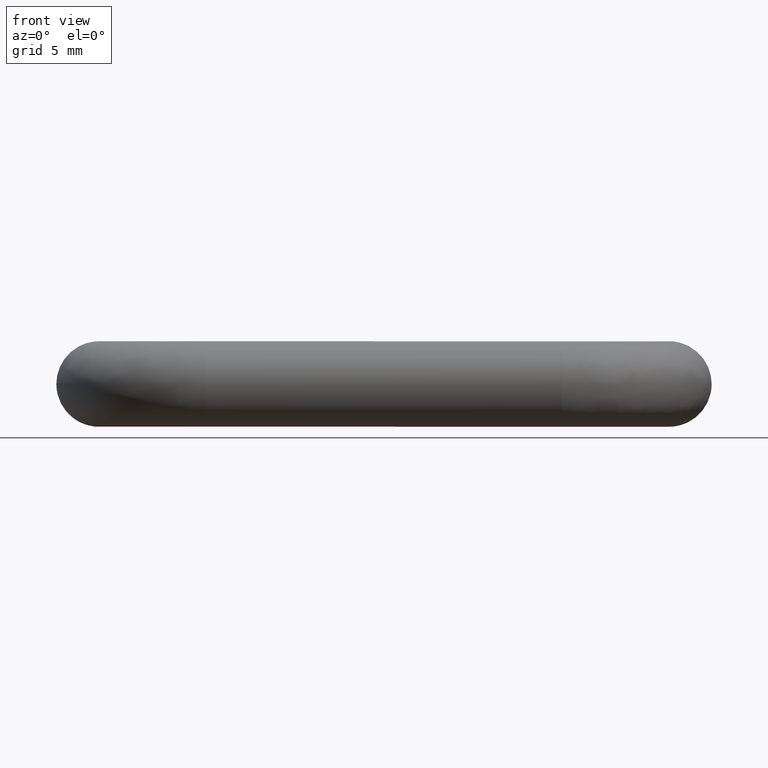
[diagram: clean part render]
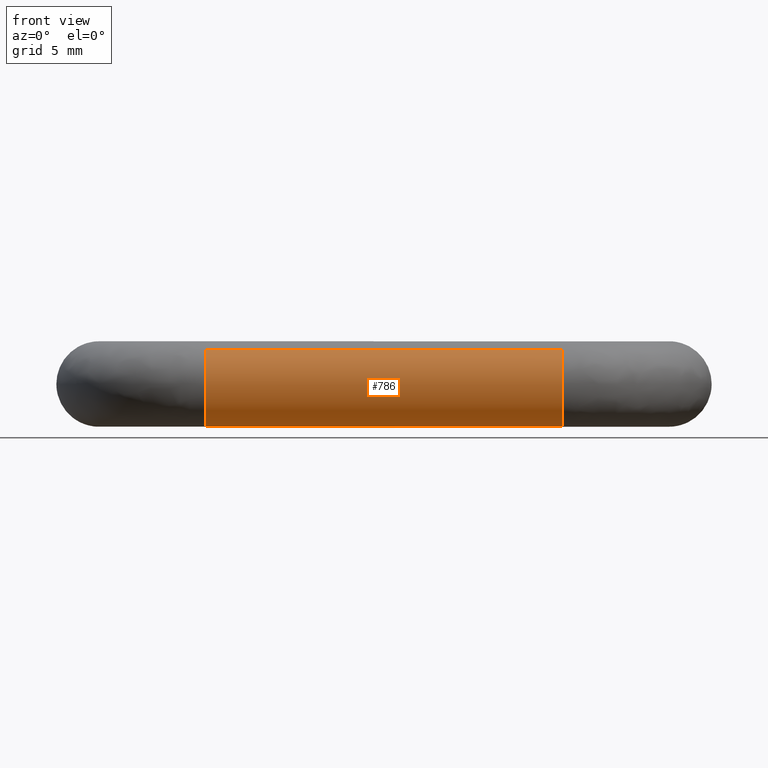
[diagram: same view with one face highlighted and labeled with its STEP entity id]
A machine part, front view. The second image highlights one B-rep face of the part: STEP entity #786.
In plain terms, the highlighted face is a freeform B-spline surface patch.
Its self-contained STEP definition (entity closure, byte-faithful):
#620=CARTESIAN_POINT('',(6.874999999837713,-20.824133624861286,2.381708739256423));
#621=CARTESIAN_POINT('',(6.874999999837713,-21.033590119325840,2.221287513856022));
#622=CARTESIAN_POINT('',(6.874999999837713,-21.211832010430371,2.026770622846980));
#623=CARTESIAN_POINT('',(6.874999999837713,-23.238602633277360,-0.185061387583391));
#624=CARTESIAN_POINT('',(6.874999999837713,-21.026770622846978,-2.211832010430372));
#625=CARTESIAN_POINT('',(6.874999999837713,-18.814938612416615,-4.238602633277352));
#626=CARTESIAN_POINT('',(6.874999999837713,-16.788167989569629,-2.026770622846980));
#627=CARTESIAN_POINT('',(6.874999999837713,-14.761397366722647,0.185061387583391));
#628=CARTESIAN_POINT('',(6.874999999837713,-16.973229377153022,2.211832010430372));
#629=CARTESIAN_POINT('',(33.140625000443897,-20.824133624861286,2.381708739256423));
#630=CARTESIAN_POINT('',(33.140625000443897,-21.033590119325829,2.221287513856022));
#631=CARTESIAN_POINT('',(33.140625000443897,-21.211832010430371,2.026770622846980));
#632=CARTESIAN_POINT('',(33.140625000443897,-23.238602633277342,-0.185061387583391));
#633=CARTESIAN_POINT('',(33.140625000443897,-21.026770622846978,-2.211832010430372));
#634=CARTESIAN_POINT('',(33.140625000443897,-18.814938612416601,-4.238602633277352));
#635=CARTESIAN_POINT('',(33.140625000443897,-16.788167989569629,-2.026770622846980));
#636=CARTESIAN_POINT('',(33.140625000443897,-14.761397366722647,0.185061387583391));
#637=CARTESIAN_POINT('',(33.140625000443897,-16.973229377153022,2.211832010430372));
#645=(BOUNDED_SURFACE()B_SPLINE_SURFACE(2,1,((#620,#629),(#621,#630),(#622,#631),(#623,#632),(#624,#633),(#625,#634),(#626,#635),(#627,#636),(#628,#637)),.UNSPECIFIED.,.F.,.F.,.U.)B_SPLINE_SURFACE_WITH_KNOTS((3,2,2,2,3),(2,2),(0.0,0.596467529817257,5.567030278294396,10.537593026771541,15.508155775248680),(0.0,26.265625000606189),.UNSPECIFIED.)GEOMETRIC_REPRESENTATION_ITEM()RATIONAL_B_SPLINE_SURFACE(((0.938140952186599,0.938140952186599),(0.964852813742386,0.964852813742386),(1.0,1.0),(0.707106781186548,0.707106781186548),(1.0,1.0),(0.707106781186548,0.707106781186548),(1.0,1.0),(0.707106781186548,0.707106781186548),(1.0,1.0)))REPRESENTATION_ITEM('')SURFACE());
#646=CARTESIAN_POINT('',(32.500000000000000,-22.0,0.0));
#647=VERTEX_POINT('',#646);
#648=CARTESIAN_POINT('',(32.500000000180812,-20.824133624744910,2.381708739103320));
#649=VERTEX_POINT('',#648);
#650=CARTESIAN_POINT('',(32.500000000000000,-22.0,0.0));
#651=CARTESIAN_POINT('',(32.499999999999993,-22.000000000000004,1.481121123841983));
#652=CARTESIAN_POINT('',(32.500000000180805,-20.824133624744913,2.381708739103320));
#660=(BOUNDED_CURVE()B_SPLINE_CURVE(2,(#650,#651,#652),.UNSPECIFIED.,.F.,.U.)B_SPLINE_CURVE_WITH_KNOTS((3,3),(0.500000000000000,0.644916377192483),.UNSPECIFIED.)CURVE()GEOMETRIC_REPRESENTATION_ITEM()RATIONAL_B_SPLINE_CURVE((1.0,0.830219903301237,0.857271138866268))REPRESENTATION_ITEM(''));
#661=EDGE_CURVE('',#647,#649,#660,.T.);
#662=ORIENTED_EDGE('',*,*,#661,.T.);
#663=CARTESIAN_POINT('',(7.500000000000000,-20.824133624861819,2.381708739256015));
#664=VERTEX_POINT('',#663);
#665=CARTESIAN_POINT('',(7.500000000000000,-20.824133624861819,2.381708739256015));
#666=CARTESIAN_POINT('',(32.500000000180812,-20.824133624744910,2.381708739103320));
#667=QUASI_UNIFORM_CURVE('',1,(#665,#666),.UNSPECIFIED.,.F.,.U.);
#668=EDGE_CURVE('',#664,#649,#667,.T.);
#669=ORIENTED_EDGE('',*,*,#668,.F.);
#670=CARTESIAN_POINT('',(7.500000000000000,-22.0,0.0));
#671=VERTEX_POINT('',#670);
#672=CARTESIAN_POINT('',(7.500000000000000,-22.0,0.0));
#673=CARTESIAN_POINT('',(7.500000000000000,-22.0,1.481121124204090));
#674=CARTESIAN_POINT('',(7.500000000000001,-20.824133624861819,2.381708739256015));
#682=(BOUNDED_CURVE()B_SPLINE_CURVE(2,(#672,#673,#674),.UNSPECIFIED.,.F.,.U.)B_SPLINE_CURVE_WITH_KNOTS((3,3),(0.500000000000000,0.644916377221898),.UNSPECIFIED.)CURVE()GEOMETRIC_REPRESENTATION_ITEM()RATIONAL_B_SPLINE_CURVE((1.0,0.830219903266776,0.857271138877249))REPRESENTATION_ITEM(''));
#683=EDGE_CURVE('',#671,#664,#682,.T.);
#684=ORIENTED_EDGE('',*,*,#683,.F.);
#685=CARTESIAN_POINT('',(7.499999999852138,-19.209199755468461,-2.992697021469419));
#686=VERTEX_POINT('',#685);
#687=CARTESIAN_POINT('',(7.499999999852138,-19.209199755468461,-2.992697021469419));
#688=CARTESIAN_POINT('',(7.499999999999999,-22.0,-2.797610540408957));
#689=CARTESIAN_POINT('',(7.500000000000000,-22.0,0.0));
#697=(BOUNDED_CURVE()B_SPLINE_CURVE(2,(#687,#688,#689),.UNSPECIFIED.,.F.,.U.)B_SPLINE_CURVE_WITH_KNOTS((3,3),(0.262166313550163,0.500000000000000),.UNSPECIFIED.)CURVE()GEOMETRIC_REPRESENTATION_ITEM()RATIONAL_B_SPLINE_CURVE((0.972879876206656,0.721360504133751,1.0))REPRESENTATION_ITEM(''));
#698=EDGE_CURVE('',#686,#671,#697,.T.);
#699=ORIENTED_EDGE('',*,*,#698,.F.);
#700=CARTESIAN_POINT('',(7.500000000000000,-16.0,0.0));
#701=VERTEX_POINT('',#700);
#702=CARTESIAN_POINT('',(7.500000000000000,-16.0,0.0));
#703=CARTESIAN_POINT('',(7.500000000000000,-15.999999999999998,-3.0));
#704=CARTESIAN_POINT('',(7.500000000000000,-19.0,-3.0));
#705=CARTESIAN_POINT('',(7.499999999999999,-19.104727348368993,-3.000000000000000));
#706=CARTESIAN_POINT('',(7.499999999852138,-19.209199755468454,-2.992697021469420));
#714=(BOUNDED_CURVE()B_SPLINE_CURVE(2,(#702,#703,#704,#705,#706),.UNSPECIFIED.,.F.,.U.)B_SPLINE_CURVE_WITH_KNOTS((3,2,3),(0.0,0.250000000000000,0.262166313550163),.UNSPECIFIED.)CURVE()GEOMETRIC_REPRESENTATION_ITEM()RATIONAL_B_SPLINE_CURVE((1.0,0.707106781186548,1.0,0.985746277052796,0.972879876206656))REPRESENTATION_ITEM(''));
#715=EDGE_CURVE('',#701,#686,#714,.T.);
#716=ORIENTED_EDGE('',*,*,#715,.F.);
#717=CARTESIAN_POINT('',(7.499999999961977,-16.973229603323041,2.211832217647193));
#718=VERTEX_POINT('',#717);
#719=CARTESIAN_POINT('',(7.499999999961976,-16.973229603323041,2.211832217647193));
#720=CARTESIAN_POINT('',(7.500000000000000,-16.000000000000004,1.320031958778294));
#721=CARTESIAN_POINT('',(7.500000000000000,-16.0,0.0));
#729=(BOUNDED_CURVE()B_SPLINE_CURVE(2,(#719,#720,#721),.UNSPECIFIED.,.F.,.U.)B_SPLINE_CURVE_WITH_KNOTS((3,3),(0.868415178215821,1.0),.UNSPECIFIED.)CURVE()GEOMETRIC_REPRESENTATION_ITEM()RATIONAL_B_SPLINE_CURVE((0.853959784648125,0.845838792002550,1.0))REPRESENTATION_ITEM(''));
#730=EDGE_CURVE('',#718,#701,#729,.T.);
#731=ORIENTED_EDGE('',*,*,#730,.F.);
#732=CARTESIAN_POINT('',(32.500000000000000,-16.973229668249779,2.211832277171336));
#733=VERTEX_POINT('',#732);
#734=CARTESIAN_POINT('',(7.499999999961977,-16.973229603323041,2.211832217647193));
#735=CARTESIAN_POINT('',(32.500000000000000,-16.973229668249779,2.211832277171336));
#736=QUASI_UNIFORM_CURVE('',1,(#734,#735),.UNSPECIFIED.,.F.,.U.);
#737=EDGE_CURVE('',#718,#733,#736,.T.);
#738=ORIENTED_EDGE('',*,*,#737,.T.);
#739=CARTESIAN_POINT('',(32.500000000000000,-16.0,0.0));
#740=VERTEX_POINT('',#739);
#741=CARTESIAN_POINT('',(32.500000000000007,-16.973229668249783,2.211832277171336));
#742=CARTESIAN_POINT('',(32.500000000000000,-16.0,1.320032063944246));
#743=CARTESIAN_POINT('',(32.500000000000000,-16.0,0.0));
#751=(BOUNDED_CURVE()B_SPLINE_CURVE(2,(#741,#742,#743),.UNSPECIFIED.,.F.,.U.)B_SPLINE_CURVE_WITH_KNOTS((3,3),(0.868415169348670,1.0),.UNSPECIFIED.)CURVE()GEOMETRIC_REPRESENTATION_ITEM()RATIONAL_B_SPLINE_CURVE((0.853959785742630,0.845838781614036,1.0))REPRESENTATION_ITEM(''));
#752=EDGE_CURVE('',#733,#740,#751,.T.);
#753=ORIENTED_EDGE('',*,*,#752,.T.);
#754=CARTESIAN_POINT('',(32.500000000122377,-18.962301880125231,-2.999763132608624));
#755=VERTEX_POINT('',#754);
#756=CARTESIAN_POINT('',(32.500000000000000,-16.0,0.0));
#757=CARTESIAN_POINT('',(32.499999999999993,-16.0,-2.962535789278067));
#758=CARTESIAN_POINT('',(32.500000000122384,-18.962301880125231,-2.999763132608624));
#766=(BOUNDED_CURVE()B_SPLINE_CURVE(2,(#756,#757,#758),.UNSPECIFIED.,.F.,.U.)B_SPLINE_CURVE_WITH_KNOTS((3,3),(0.0,0.247784295895380),.UNSPECIFIED.)CURVE()GEOMETRIC_REPRESENTATION_ITEM()RATIONAL_B_SPLINE_CURVE((1.0,0.709702640015109,0.994854295583369))REPRESENTATION_ITEM(''));
#767=EDGE_CURVE('',#740,#755,#766,.T.);
#768=ORIENTED_EDGE('',*,*,#767,.T.);
#769=CARTESIAN_POINT('',(32.500000000122384,-18.962301880125235,-2.999763132608624));
#770=CARTESIAN_POINT('',(32.500000000000000,-18.981150195799593,-3.000000000000000));
#771=CARTESIAN_POINT('',(32.500000000000000,-19.0,-3.0));
#772=CARTESIAN_POINT('',(32.500000000000007,-22.000000000000007,-3.0));
#773=CARTESIAN_POINT('',(32.500000000000000,-22.0,0.0));
#781=(BOUNDED_CURVE()B_SPLINE_CURVE(2,(#769,#770,#771,#772,#773),.UNSPECIFIED.,.F.,.U.)B_SPLINE_CURVE_WITH_KNOTS((3,2,3),(0.247784295895380,0.250000000000000,0.500000000000000),.UNSPECIFIED.)CURVE()GEOMETRIC_REPRESENTATION_ITEM()RATIONAL_B_SPLINE_CURVE((0.994854295583369,0.997404141171439,1.0,0.707106781186548,1.0))REPRESENTATION_ITEM(''));
#782=EDGE_CURVE('',#755,#647,#781,.T.);
#783=ORIENTED_EDGE('',*,*,#782,.T.);
#784=EDGE_LOOP('',(#662,#669,#684,#699,#716,#731,#738,#753,#768,#783));
#785=FACE_OUTER_BOUND('',#784,.T.);
#786=ADVANCED_FACE('',(#785),#645,.T.);